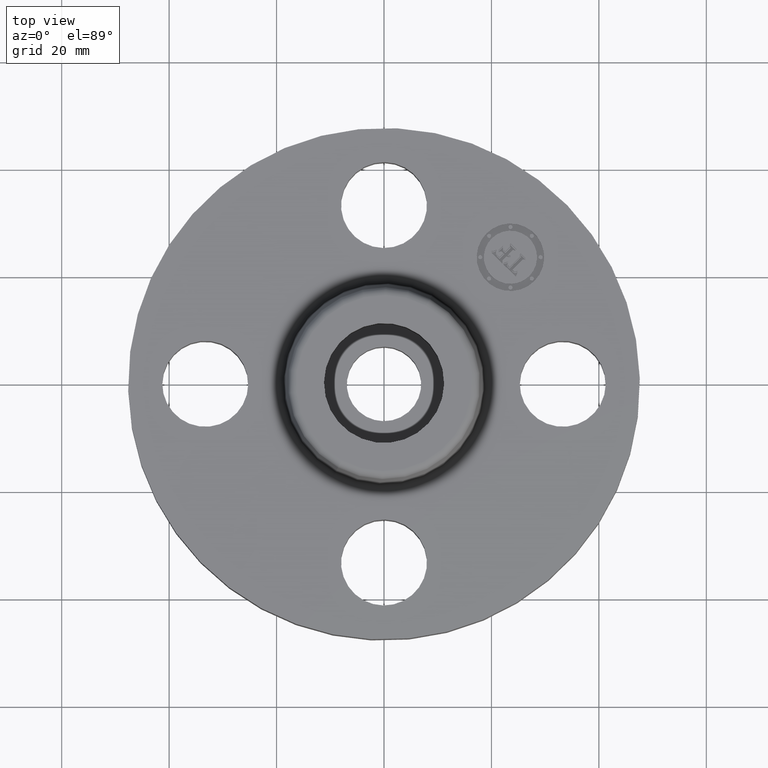
[diagram: clean part render]
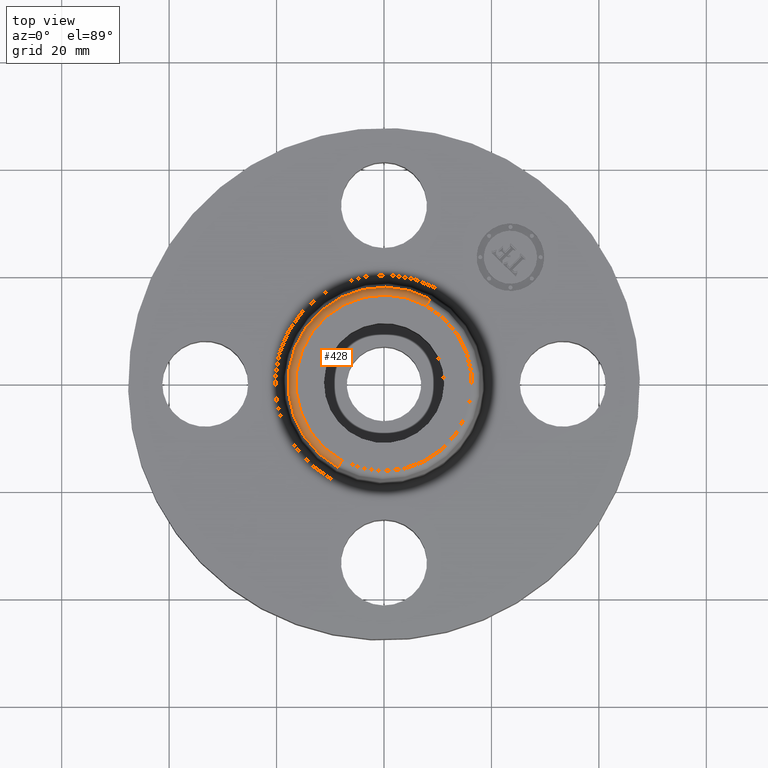
[diagram: same view with one face highlighted and labeled with its STEP entity id]
A machine part, top view. The second image highlights one B-rep face of the part: STEP entity #428.
In plain terms, the highlighted toroidal blend (fillet) surface has major radius 16.3828 mm and minor (blend) radius 1.524 mm.
Its self-contained STEP definition (entity closure, byte-faithful):
#376=AXIS2_PLACEMENT_3D('Circle Axis2P3D',#374,#375,$) ;
#389=AXIS2_PLACEMENT_3D('Torus Axis2P3D',#386,#387,#388) ;
#393=AXIS2_PLACEMENT_3D('Circle Axis2P3D',#391,#392,$) ;
#407=AXIS2_PLACEMENT_3D('Circle Axis2P3D',#405,#406,$) ;
#419=AXIS2_PLACEMENT_3D('Circle Axis2P3D',#417,#418,$) ;
#352=CARTESIAN_POINT('Vertex',(0.337554471756,0.617889315958,0.760418890663)) ;
#359=CARTESIAN_POINT('Vertex',(-0.337554471756,-0.617889315958,0.760418890663)) ;
#374=CARTESIAN_POINT('Axis2P3D Location',(0.,0.,0.760418890663)) ;
#386=CARTESIAN_POINT('Axis2P3D Location',(0.,0.,0.750000000003)) ;
#391=CARTESIAN_POINT('Axis2P3D Location',(0.309225952511,0.566034309307,0.750000000003)) ;
#395=CARTESIAN_POINT('Vertex',(0.309225952511,0.566034309307,0.810000000003)) ;
#402=CARTESIAN_POINT('Vertex',(-0.309225952511,-0.566034309307,0.810000000003)) ;
#405=CARTESIAN_POINT('Axis2P3D Location',(-0.309225952511,-0.566034309307,0.750000000003)) ;
#417=CARTESIAN_POINT('Axis2P3D Location',(0.,0.,0.810000000003)) ;
#375=DIRECTION('Axis2P3D Direction',(0.,0.,-0.0393700787402)) ;
#387=DIRECTION('Axis2P3D Direction',(0.,0.,-0.0393700787402)) ;
#388=DIRECTION('Axis2P3D XDirection',(-0.0188750212049,-0.0345504945626,0.)) ;
#392=DIRECTION('Axis2P3D Direction',(-0.0345504945626,0.0188750212049,0.)) ;
#406=DIRECTION('Axis2P3D Direction',(0.0345504945626,-0.0188750212049,0.)) ;
#418=DIRECTION('Axis2P3D Direction',(0.,0.,-0.0393700787402)) ;
#423=ORIENTED_EDGE('',*,*,#378,.F.) ;
#424=ORIENTED_EDGE('',*,*,#409,.T.) ;
#425=ORIENTED_EDGE('',*,*,#421,.T.) ;
#426=ORIENTED_EDGE('',*,*,#397,.F.) ;
#428=ADVANCED_FACE('PartBody',(#427),#390,.T.) ;
#377=CIRCLE('generated circle',#376,0.704081123293) ;
#394=CIRCLE('generated circle',#393,0.0600000000002) ;
#408=CIRCLE('generated circle',#407,0.0600000000002) ;
#420=CIRCLE('generated circle',#419,0.644992658112) ;
#390=TOROIDAL_SURFACE('homeo Torus',#389,0.644992658112,0.0600000000002) ;
#378=EDGE_CURVE('',#360,#353,#377,.T.) ;
#397=EDGE_CURVE('',#353,#396,#394,.F.) ;
#409=EDGE_CURVE('',#360,#403,#408,.F.) ;
#421=EDGE_CURVE('',#403,#396,#420,.T.) ;
#422=EDGE_LOOP('',(#423,#424,#425,#426)) ;
#427=FACE_OUTER_BOUND('',#422,.T.) ;
#353=VERTEX_POINT('',#352) ;
#360=VERTEX_POINT('',#359) ;
#396=VERTEX_POINT('',#395) ;
#403=VERTEX_POINT('',#402) ;